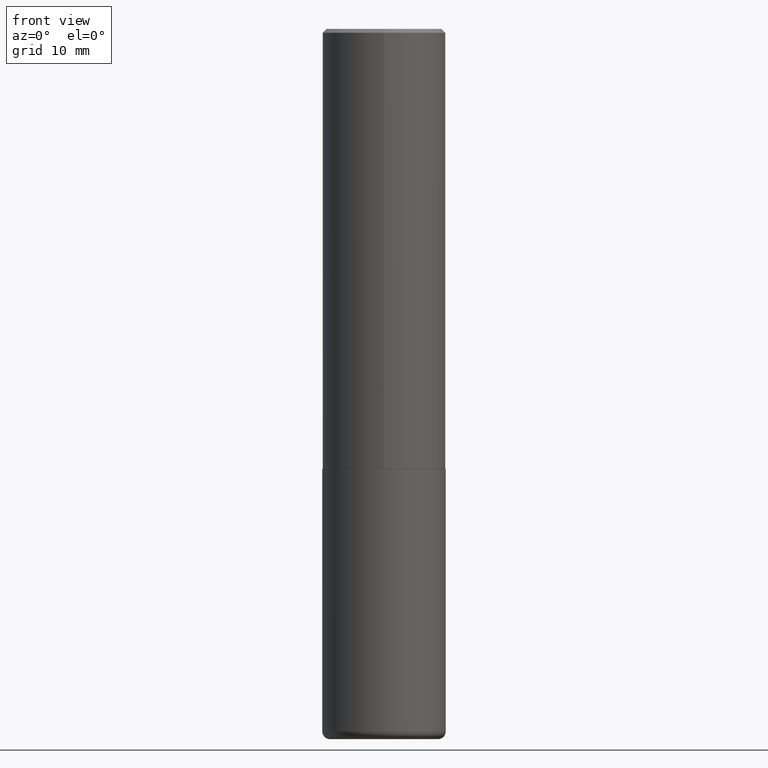
[diagram: clean part render]
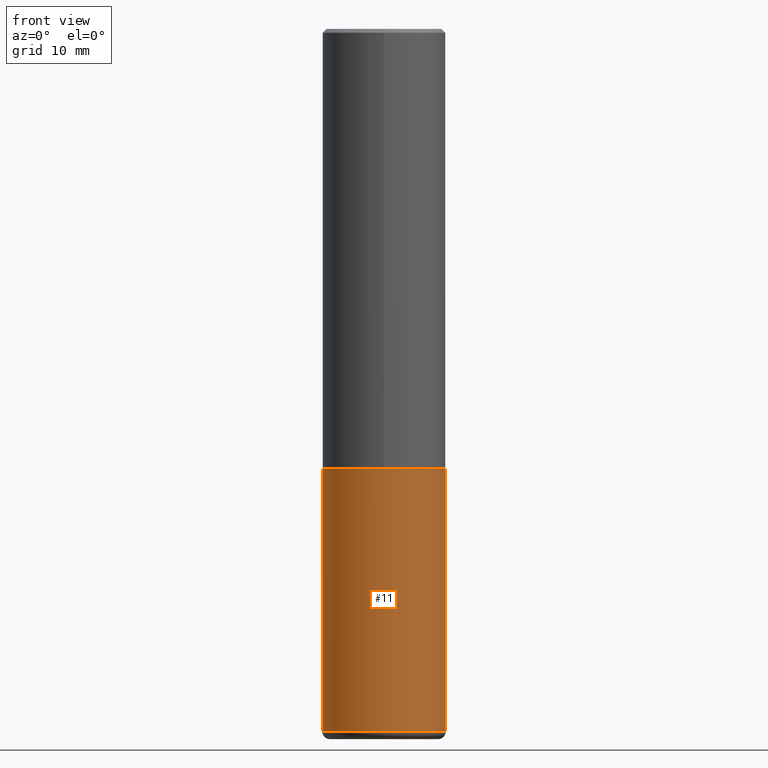
[diagram: same view with one face highlighted and labeled with its STEP entity id]
A machine part, front view. The second image highlights one B-rep face of the part: STEP entity #11.
In plain terms, the highlighted cylindrical surface (partial cylindrical patch) has radius 7.9997 mm, axis along (-0, 0, 1).
Its self-contained STEP definition (entity closure, byte-faithful):
#1 = AXIS2_PLACEMENT_3D ( 'NONE', #198, #43, #37 ) ;
#5 = VECTOR ( 'NONE', #376, 39.37007874015748143 ) ;
#11 = ADVANCED_FACE ( 'NONE', ( #340 ), #211, .T. ) ;
#21 = VERTEX_POINT ( 'NONE', #312 ) ;
#29 = EDGE_CURVE ( 'NONE', #135, #21, #32, .T. ) ;
#32 = LINE ( 'NONE', #129, #5 ) ;
#36 = ORIENTED_EDGE ( 'NONE', *, *, #201, .F. ) ;
#37 = DIRECTION ( 'NONE',  ( 1.000000000000000000, -6.982962677686269866E-15, 0.000000000000000000 ) ) ;
#43 = DIRECTION ( 'NONE',  ( -2.445468806185136597E-29, 3.491481338843145583E-15, 1.000000000000000000 ) ) ;
#58 = CARTESIAN_POINT ( 'NONE',  ( 0.000000000000000000, 0.000000000000000000, 0.000000000000000000 ) ) ;
#76 = ORIENTED_EDGE ( 'NONE', *, *, #29, .T. ) ;
#77 = DIRECTION ( 'NONE',  ( -2.445468806185136597E-29, 3.491481338843145583E-15, 1.000000000000000000 ) ) ;
#82 = CARTESIAN_POINT ( 'NONE',  ( 0.3149500000000000077, -1.470786513987674265E-14, -3.582600000000000229 ) ) ;
#107 = ORIENTED_EDGE ( 'NONE', *, *, #351, .F. ) ;
#129 = CARTESIAN_POINT ( 'NONE',  ( 0.3149500000000000077, -2.199284095337289871E-15, 1.535751875536930130E-29 ) ) ;
#135 = VERTEX_POINT ( 'NONE', #82 ) ;
#137 = VECTOR ( 'NONE', #285, 39.37007874015748143 ) ;
#147 = ORIENTED_EDGE ( 'NONE', *, *, #372, .T. ) ;
#165 = AXIS2_PLACEMENT_3D ( 'NONE', #58, #278, #369 ) ;
#198 = CARTESIAN_POINT ( 'NONE',  ( 8.761136545038871001E-29, -1.250858104453945278E-14, -3.582600000000000229 ) ) ;
#201 = EDGE_CURVE ( 'NONE', #334, #345, #214, .T. ) ;
#205 = CARTESIAN_POINT ( 'NONE',  ( 5.487632001079445967E-29, -7.834884124364017250E-15, -2.243999999999999773 ) ) ;
#207 = AXIS2_PLACEMENT_3D ( 'NONE', #205, #77, #332 ) ;
#211 = CYLINDRICAL_SURFACE ( 'NONE', #165, 0.3149500000000000077 ) ;
#214 = LINE ( 'NONE', #350, #137 ) ;
#224 = CIRCLE ( 'NONE', #207, 0.3149500000000000077 ) ;
#278 = DIRECTION ( 'NONE',  ( -2.445468806185136597E-29, 3.491481338843145583E-15, 1.000000000000000000 ) ) ;
#285 = DIRECTION ( 'NONE',  ( -2.445468806185136877E-29, 3.491481338843145188E-15, 1.000000000000000000 ) ) ;
#306 = CARTESIAN_POINT ( 'NONE',  ( -0.3149500000000000077, -1.027072669826301679E-14, -3.582600000000000229 ) ) ;
#312 = CARTESIAN_POINT ( 'NONE',  ( 0.3149500000000000077, -1.003416821970130712E-14, -2.243999999999999773 ) ) ;
#328 = EDGE_LOOP ( 'NONE', ( #36, #147, #76, #107 ) ) ;
#332 = DIRECTION ( 'NONE',  ( 1.000000000000000000, -6.982962677686266711E-15, 0.000000000000000000 ) ) ;
#334 = VERTEX_POINT ( 'NONE', #306 ) ;
#339 = CIRCLE ( 'NONE', #1, 0.3149500000000000077 ) ;
#340 = FACE_OUTER_BOUND ( 'NONE', #328, .T. ) ;
#345 = VERTEX_POINT ( 'NONE', #359 ) ;
#350 = CARTESIAN_POINT ( 'NONE',  ( -0.3149500000000000077, 2.237854346276435590E-15, -1.549218606675782676E-29 ) ) ;
#351 = EDGE_CURVE ( 'NONE', #345, #21, #224, .T. ) ;
#359 = CARTESIAN_POINT ( 'NONE',  ( -0.3149500000000000077, -7.933878238175299817E-15, -2.243999999999999773 ) ) ;
#369 = DIRECTION ( 'NONE',  ( 1.000000000000000000, -6.982962677686266711E-15, 4.876176775795936353E-29 ) ) ;
#372 = EDGE_CURVE ( 'NONE', #334, #135, #339, .T. ) ;
#376 = DIRECTION ( 'NONE',  ( -2.445468806185136877E-29, 3.491481338843145188E-15, 1.000000000000000000 ) ) ;